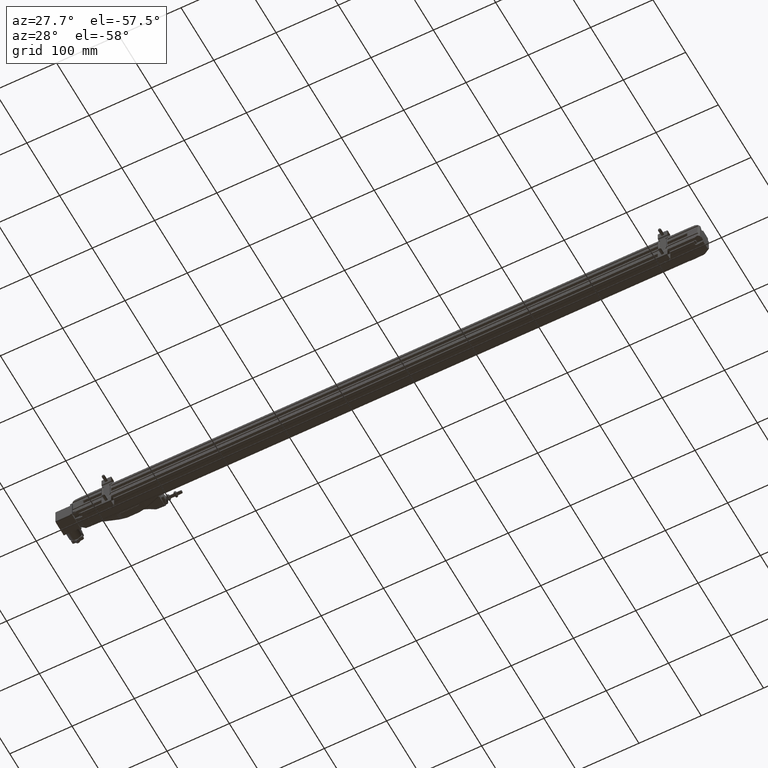
[diagram: clean part render]
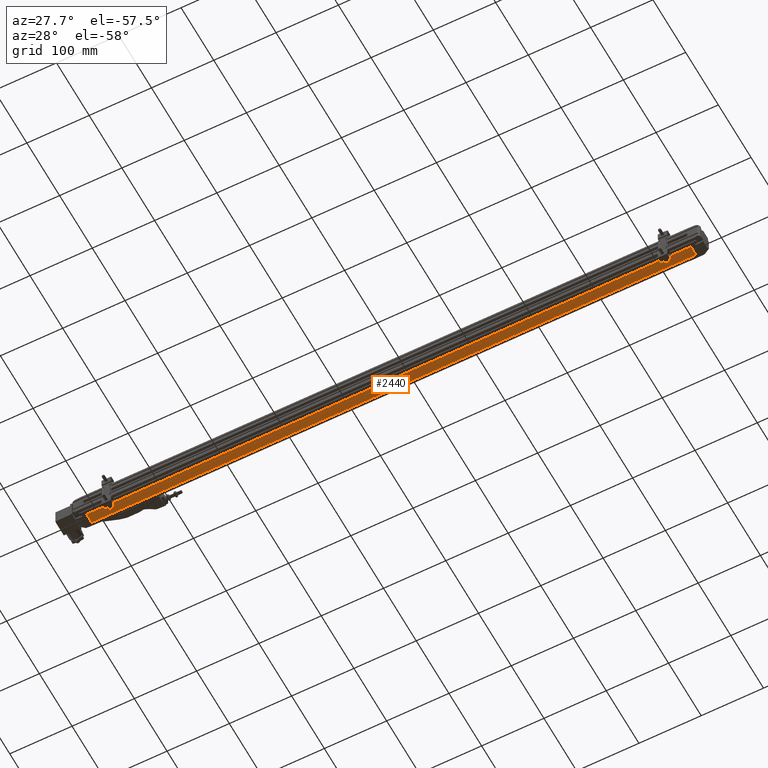
[diagram: same view with one face highlighted and labeled with its STEP entity id]
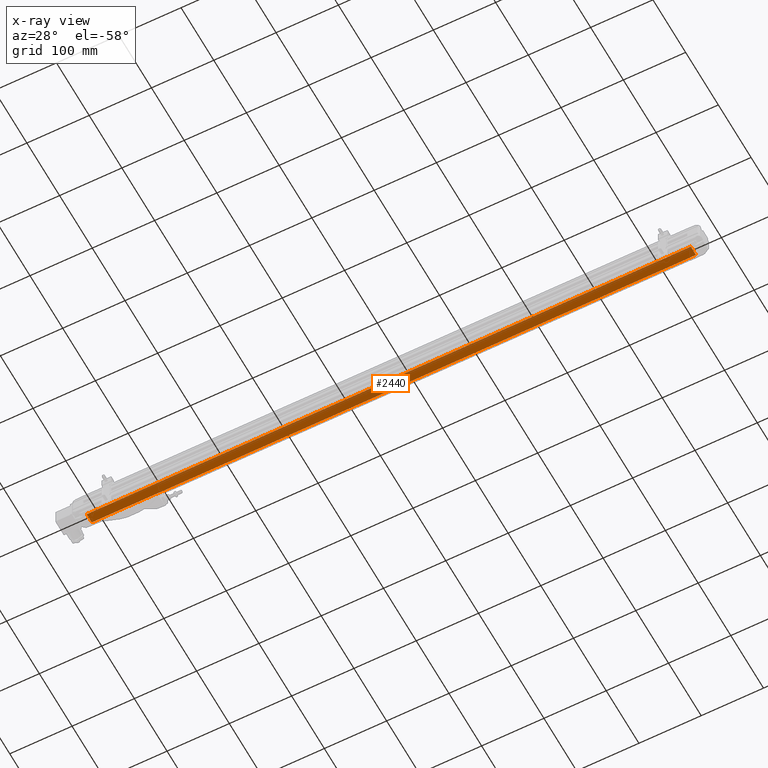
[diagram: x-ray of the same camera — body ghosted, the highlighted face saturated]
A machine part, auxiliary view. The second image highlights one B-rep face of the part: STEP entity #2440.
The next image is the same camera in x-ray: the body ghosted, the highlighted face saturated — about 0% of this face is hidden behind the body in this view.
In plain terms, the highlighted planar face has unit normal (0, 0, 1).
Its self-contained STEP definition (entity closure, byte-faithful):
#996 = CARTESIAN_POINT ( 'NONE',  ( -8.858267716535433323, 1.061023630314960720, -1.299077997440944987 ) ) ;
#2054 = EDGE_CURVE ( 'NONE', #6639, #22349, #11500, .T. ) ;
#2440 = ADVANCED_FACE ( 'NONE', ( #7271 ), #11442, .F. ) ;
#3166 = CARTESIAN_POINT ( 'NONE',  ( 29.33070866141732225, 0.4468503849212598911, -1.299077997440944987 ) ) ;
#3872 = CARTESIAN_POINT ( 'NONE',  ( 29.33070866141732225, 1.061023630314960720, -1.299077997440944987 ) ) ;
#4038 = VECTOR ( 'NONE', #12335, 39.37007874015748143 ) ;
#4535 = CARTESIAN_POINT ( 'NONE',  ( -8.858267716535433323, 1.061023630314960720, -1.299077997440944987 ) ) ;
#5575 = VECTOR ( 'NONE', #12153, 39.37007874015748143 ) ;
#6639 = VERTEX_POINT ( 'NONE', #30942 ) ;
#7271 = FACE_OUTER_BOUND ( 'NONE', #22597, .T. ) ;
#7636 = VERTEX_POINT ( 'NONE', #3166 ) ;
#8626 = LINE ( 'NONE', #29576, #4038 ) ;
#8752 = CARTESIAN_POINT ( 'NONE',  ( -8.858267716535433323, 0.4468503849212598911, -1.299077997440944987 ) ) ;
#11442 = PLANE ( 'NONE',  #37862 ) ;
#11500 = LINE ( 'NONE', #4535, #22986 ) ;
#12153 = DIRECTION ( 'NONE',  ( -6.829894528618840264E-25, -1.000000000000000000, 1.936991253392630006E-26 ) ) ;
#12335 = DIRECTION ( 'NONE',  ( 1.000000000000000000, -6.829894528618840264E-25, -1.341063538875720069E-28 ) ) ;
#13111 = LINE ( 'NONE', #17290, #30375 ) ;
#17290 = CARTESIAN_POINT ( 'NONE',  ( -8.858267716535433323, 1.061023630314960720, -1.299077997440944987 ) ) ;
#17972 = DIRECTION ( 'NONE',  ( 1.341063538875720069E-28, 1.936991253392630006E-26, 1.000000000000000000 ) ) ;
#17990 = EDGE_CURVE ( 'NONE', #35018, #7636, #36837, .T. ) ;
#18259 = DIRECTION ( 'NONE',  ( -6.829894528618840264E-25, -1.000000000000000000, 1.936991253392630006E-26 ) ) ;
#22349 = VERTEX_POINT ( 'NONE', #8752 ) ;
#22597 = EDGE_LOOP ( 'NONE', ( #28305, #35144, #23677, #28744 ) ) ;
#22863 = EDGE_CURVE ( 'NONE', #6639, #35018, #13111, .T. ) ;
#22986 = VECTOR ( 'NONE', #18259, 39.37007874015748143 ) ;
#23677 = ORIENTED_EDGE ( 'NONE', *, *, #2054, .F. ) ;
#24504 = DIRECTION ( 'NONE',  ( 1.000000000000000000, -6.829894528618840264E-25, -1.341063538875720069E-28 ) ) ;
#24506 = EDGE_CURVE ( 'NONE', #22349, #7636, #8626, .T. ) ;
#25174 = DIRECTION ( 'NONE',  ( 1.000000000000000000, -6.829894528618840264E-25, -1.341063538875720069E-28 ) ) ;
#28305 = ORIENTED_EDGE ( 'NONE', *, *, #17990, .T. ) ;
#28744 = ORIENTED_EDGE ( 'NONE', *, *, #22863, .T. ) ;
#29576 = CARTESIAN_POINT ( 'NONE',  ( -8.858267716535433323, 0.4468503849212598911, -1.299077997440944987 ) ) ;
#30375 = VECTOR ( 'NONE', #24504, 39.37007874015748143 ) ;
#30942 = CARTESIAN_POINT ( 'NONE',  ( -8.858267716535433323, 1.061023630314960720, -1.299077997440944987 ) ) ;
#35018 = VERTEX_POINT ( 'NONE', #3872 ) ;
#35144 = ORIENTED_EDGE ( 'NONE', *, *, #24506, .F. ) ;
#36837 = LINE ( 'NONE', #43620, #5575 ) ;
#37862 = AXIS2_PLACEMENT_3D ( 'NONE', #996, #17972, #25174 ) ;
#43620 = CARTESIAN_POINT ( 'NONE',  ( 29.33070866141732225, 1.061023630314960720, -1.299077997440944987 ) ) ;